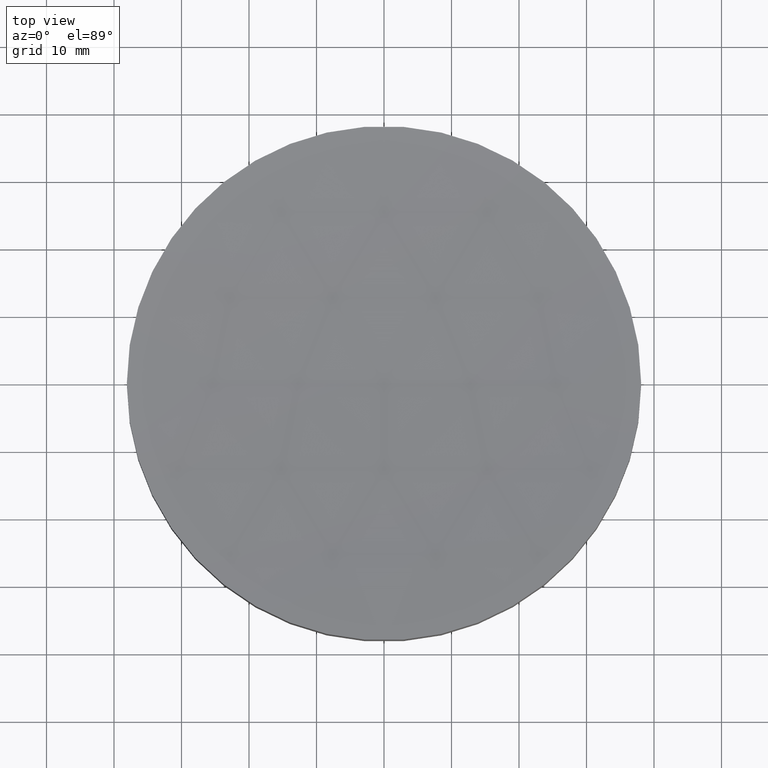
[diagram: clean part render]
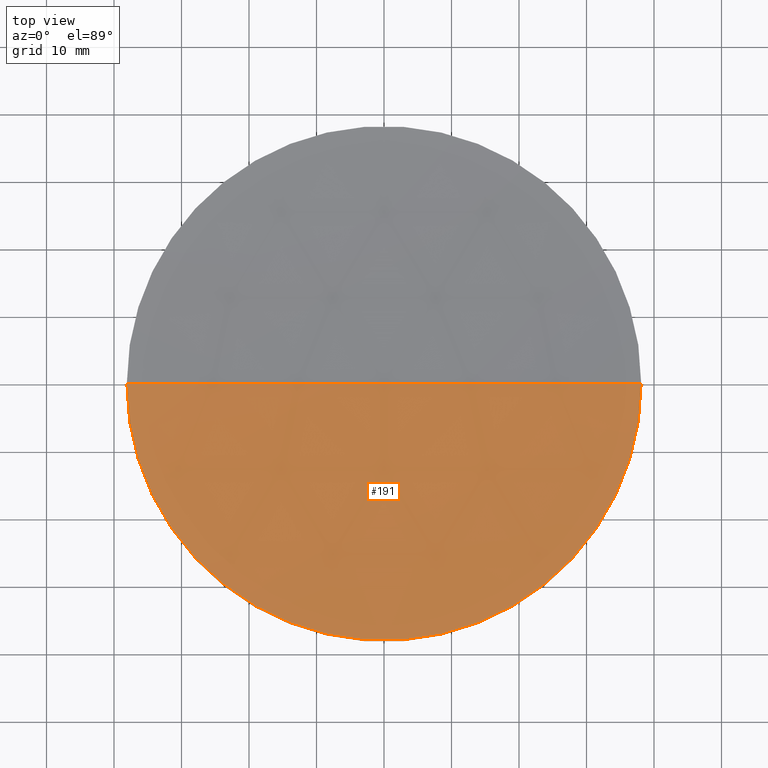
[diagram: same view with one face highlighted and labeled with its STEP entity id]
A machine part, top view. The second image highlights one B-rep face of the part: STEP entity #191.
In plain terms, the highlighted spherical surface has radius 400 mm.
Its self-contained STEP definition (entity closure, byte-faithful):
#12 = EDGE_CURVE ( 'NONE', #94, #80, #49, .T. ) ;
#15 = AXIS2_PLACEMENT_3D ( 'NONE', #170, #47, #188 ) ;
#17 = CIRCLE ( 'NONE', #112, 399.9999999999999432 ) ;
#18 = CARTESIAN_POINT ( 'NONE',  ( 4.857225732735059864E-14, 0.000000000000000000, 410.8813531545644651 ) ) ;
#40 = CARTESIAN_POINT ( 'NONE',  ( 7.306519331029765352E-14, 0.000000000000000000, 10.88135315456445440 ) ) ;
#47 = DIRECTION ( 'NONE',  ( 1.224646799147353207E-16, -1.000000000000000000, 0.000000000000000000 ) ) ;
#48 = DIRECTION ( 'NONE',  ( 1.000000000000000000, 0.000000000000000000, 0.000000000000000000 ) ) ;
#49 = CIRCLE ( 'NONE', #193, 38.10000000000025722 ) ;
#61 = ORIENTED_EDGE ( 'NONE', *, *, #145, .T. ) ;
#64 = CARTESIAN_POINT ( 'NONE',  ( 4.857225732735059864E-14, 0.000000000000000000, 12.69999999999998863 ) ) ;
#65 = VERTEX_POINT ( 'NONE', #40 ) ;
#73 = CARTESIAN_POINT ( 'NONE',  ( 4.857225732735059864E-14, 0.000000000000000000, 410.8813531545644651 ) ) ;
#78 = EDGE_LOOP ( 'NONE', ( #142, #156, #61 ) ) ;
#80 = VERTEX_POINT ( 'NONE', #196 ) ;
#87 = CARTESIAN_POINT ( 'NONE',  ( 38.10000000000030695, 4.665904304751453163E-15, 12.69999999999998863 ) ) ;
#94 = VERTEX_POINT ( 'NONE', #87 ) ;
#98 = DIRECTION ( 'NONE',  ( -0.000000000000000000, -0.000000000000000000, -1.000000000000000000 ) ) ;
#104 = DIRECTION ( 'NONE',  ( 0.000000000000000000, 1.000000000000000000, -0.000000000000000000 ) ) ;
#111 = DIRECTION ( 'NONE',  ( 0.000000000000000000, -1.000000000000000000, -0.000000000000000000 ) ) ;
#112 = AXIS2_PLACEMENT_3D ( 'NONE', #73, #104, #198 ) ;
#113 = DIRECTION ( 'NONE',  ( 1.000000000000000000, 0.000000000000000000, 0.000000000000000000 ) ) ;
#124 = FACE_OUTER_BOUND ( 'NONE', #78, .T. ) ;
#134 = CIRCLE ( 'NONE', #15, 400.0000000000000000 ) ;
#142 = ORIENTED_EDGE ( 'NONE', *, *, #199, .F. ) ;
#145 = EDGE_CURVE ( 'NONE', #94, #65, #17, .T. ) ;
#156 = ORIENTED_EDGE ( 'NONE', *, *, #12, .F. ) ;
#170 = CARTESIAN_POINT ( 'NONE',  ( 4.857225732735059864E-14, 0.000000000000000000, 410.8813531545644651 ) ) ;
#185 = AXIS2_PLACEMENT_3D ( 'NONE', #18, #111, #48 ) ;
#187 = SPHERICAL_SURFACE ( 'NONE', #185, 400.0000000000000000 ) ;
#188 = DIRECTION ( 'NONE',  ( 1.000000000000000000, 1.224646799147353207E-16, 0.000000000000000000 ) ) ;
#191 = ADVANCED_FACE ( 'NONE', ( #124 ), #187, .F. ) ;
#193 = AXIS2_PLACEMENT_3D ( 'NONE', #64, #98, #113 ) ;
#196 = CARTESIAN_POINT ( 'NONE',  ( -38.10000000000020748, 0.000000000000000000, 12.69999999999998863 ) ) ;
#198 = DIRECTION ( 'NONE',  ( 0.000000000000000000, 0.000000000000000000, 1.000000000000000000 ) ) ;
#199 = EDGE_CURVE ( 'NONE', #80, #65, #134, .T. ) ;